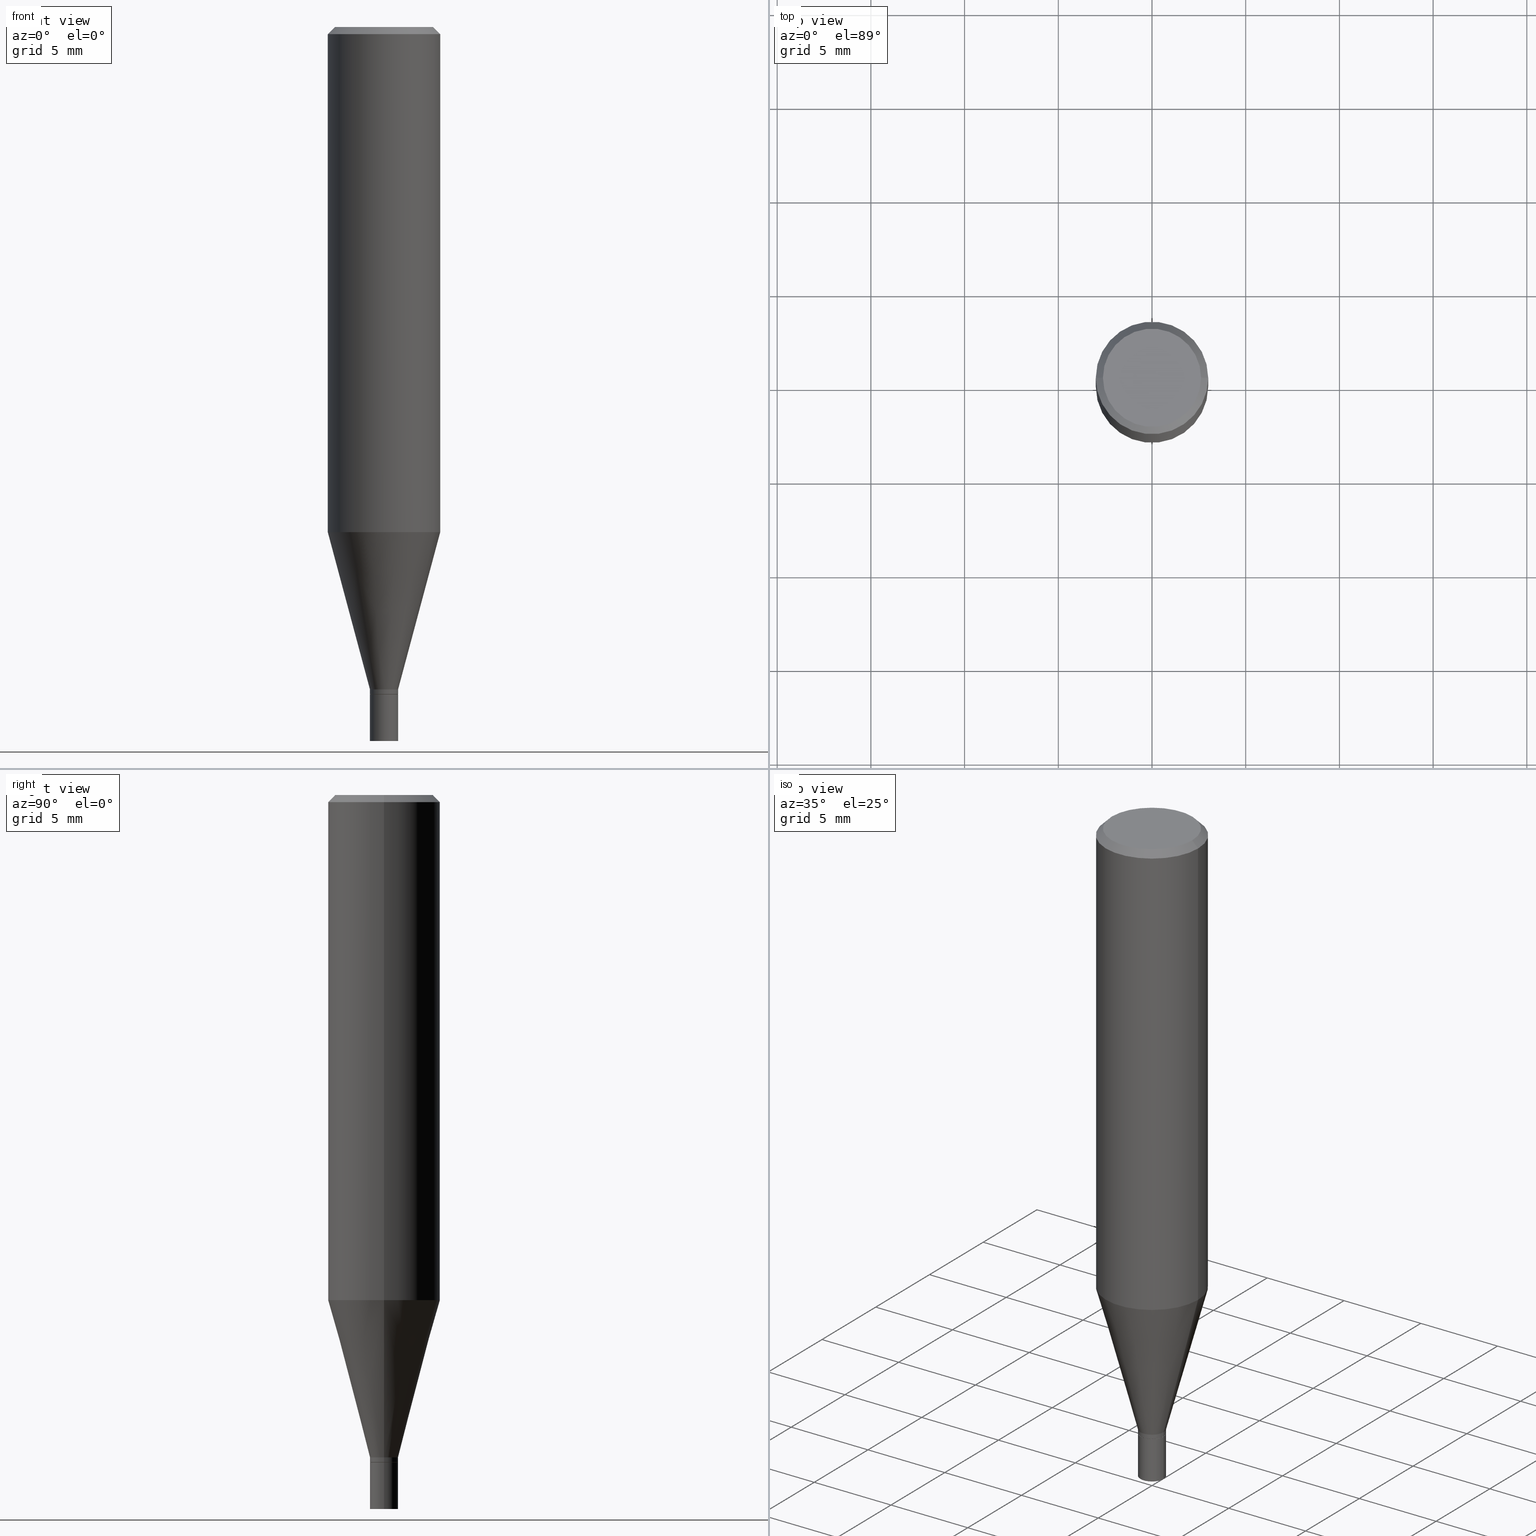
[diagram: canonical four-view strip — front | top / right | iso, engineering-drawing reading convention]
A machine part, canonical four-view strip (front | top / right | iso — engineering-drawing reading convention). The complete STEP part file that produces these views, byte-faithful:
ISO-10303-21;
HEADER;
FILE_DESCRIPTION (( 'STEP AP203' ),
    '1' );
FILE_NAME ('05310.STEP',
    '2024-03-14T18:07:20',
    ( '' ),
    ( '' ),
    'SwSTEP 2.0',
    'SolidWorks 2023',
    '' );
FILE_SCHEMA (( 'CONFIG_CONTROL_DESIGN' ));
ENDSEC;

DATA;
#1 = CIRCLE ( 'NONE', #4, 0.1180999999999999966 ) ;
#2 =( GEOMETRIC_REPRESENTATION_CONTEXT ( 3 ) GLOBAL_UNCERTAINTY_ASSIGNED_CONTEXT ( ( #76 ) ) GLOBAL_UNIT_ASSIGNED_CONTEXT ( ( #396, #173, #465 ) ) REPRESENTATION_CONTEXT ( 'NONE', 'WORKASPACE' ) );
#3 = PERSON_AND_ORGANIZATION ( #65, #17 ) ;
#4 = AXIS2_PLACEMENT_3D ( 'NONE', #219, #120, #305 ) ;
#5 = DATE_TIME_ROLE ( 'creation_date' ) ;
#6 = DIRECTION ( 'NONE',  ( -2.445468806185136597E-29, 3.491481338843145583E-15, 1.000000000000000000 ) ) ;
#7 = APPROVAL_STATUS ( 'not_yet_approved' ) ;
#8 = AXIS2_PLACEMENT_3D ( 'NONE', #354, #274, #164 ) ;
#9 = ORIENTED_EDGE ( 'NONE', *, *, #404, .T. ) ;
#10 = CARTESIAN_POINT ( 'NONE',  ( -0.1180999999999999966, -1.039487525583773150E-15, -0.01499999999999999944 ) ) ;
#11 = CARTESIAN_POINT ( 'NONE',  ( 0.02954999999999937191, -5.065091978259746092E-15, -1.391599999999999948 ) ) ;
#12 = DATE_AND_TIME ( #149, #211 ) ;
#13 = DIRECTION ( 'NONE',  ( 1.000000000000000000, -6.982962677686279332E-15, 0.000000000000000000 ) ) ;
#14 = CARTESIAN_POINT ( 'NONE',  ( 0.1031000000000000111, -7.849571885948555664E-16, -2.607001550058841606E-16 ) ) ;
#15 = CYLINDRICAL_SURFACE ( 'NONE', #350, 0.02954999999999964599 ) ;
#16 = AXIS2_PLACEMENT_3D ( 'NONE', #21, #349, #86 ) ;
#17 = ORGANIZATION ( 'UNSPECIFIED', 'UNSPECIFIED', '' ) ;
#18 = ADVANCED_FACE ( 'NONE', ( #462 ), #410, .T. ) ;
#19 = DIRECTION ( 'NONE',  ( -2.445468806185136597E-29, 3.491481338843145583E-15, 1.000000000000000000 ) ) ;
#20 = EDGE_CURVE ( 'NONE', #269, #111, #263, .T. ) ;
#21 = CARTESIAN_POINT ( 'NONE',  ( 3.426346344345994950E-29, -4.891914503853132149E-15, -1.401100000000000234 ) ) ;
#22 = ORIENTED_EDGE ( 'NONE', *, *, #301, .F. ) ;
#23 = FACE_OUTER_BOUND ( 'NONE', #366, .T. ) ;
#24 = VERTEX_POINT ( 'NONE', #11 ) ;
#25 = DIRECTION ( 'NONE',  ( -2.438088387897960049E-29, 3.491481338843145188E-15, 1.000000000000000000 ) ) ;
#26 = ORIENTED_EDGE ( 'NONE', *, *, #285, .F. ) ;
#27 = PLANE ( 'NONE',  #271 ) ;
#28 = ORIENTED_EDGE ( 'NONE', *, *, #64, .T. ) ;
#29 = ORIENTED_EDGE ( 'NONE', *, *, #304, .F. ) ;
#30 = LINE ( 'NONE', #172, #333 ) ;
#31 = LOCAL_TIME ( 14, 7, 20.00000000000000000, #437 ) ;
#32 = CALENDAR_DATE ( 2024, 14, 3 ) ;
#33 = CARTESIAN_POINT ( 'NONE',  ( 0.02954999999999964599, -2.063465471256267015E-16, 1.440910237247681904E-30 ) ) ;
#34 = PERSON_AND_ORGANIZATION ( #65, #17 ) ;
#35 = ORIENTED_EDGE ( 'NONE', *, *, #97, .F. ) ;
#36 = DIRECTION ( 'NONE',  ( 1.000000000000000000, -6.982962677686266711E-15, 4.876176775795936353E-29 ) ) ;
#37 = DIRECTION ( 'NONE',  ( 1.000000000000000000, -6.982962677686265133E-15, 0.000000000000000000 ) ) ;
#38 = APPLICATION_CONTEXT ( 'configuration controlled 3d designs of mechanical parts and assemblies' ) ;
#39 = DATE_TIME_ROLE ( 'classification_date' ) ;
#40 = CONICAL_SURFACE ( 'NONE', #61, 0.02904999999999999943, 0.7853981633974739252 ) ;
#41 = ADVANCED_FACE ( 'NONE', ( #119 ), #400, .T. ) ;
#42 = CONICAL_SURFACE ( 'NONE', #310, 0.02954999999999937191, 0.2617993877991500740 ) ;
#43 = CARTESIAN_POINT ( 'NONE',  ( 3.403114390687236206E-29, -4.858745431134121215E-15, -1.391599999999999948 ) ) ;
#44 = VERTEX_POINT ( 'NONE', #376 ) ;
#45 = CARTESIAN_POINT ( 'NONE',  ( 0.000000000000000000, 0.000000000000000000, 0.000000000000000000 ) ) ;
#46 = DIRECTION ( 'NONE',  ( 1.000000000000000000, -6.982962677686266711E-15, 4.876176775795936353E-29 ) ) ;
#47 = DIRECTION ( 'NONE',  ( -2.445468806185136597E-29, 3.491481338843145583E-15, 1.000000000000000000 ) ) ;
#48 = EDGE_LOOP ( 'NONE', ( #273, #28, #181, #424 ) ) ;
#49 = CARTESIAN_POINT ( 'NONE',  ( 3.403114390687236206E-29, -4.858745431134121215E-15, -1.391599999999999948 ) ) ;
#50 = ORIENTED_EDGE ( 'NONE', *, *, #212, .F. ) ;
#51 = LINE ( 'NONE', #55, #104 ) ;
#52 = AXIS2_PLACEMENT_3D ( 'NONE', #138, #323, #286 ) ;
#53 = DIRECTION ( 'NONE',  ( 1.000000000000000000, -6.982962677686277755E-15, 0.000000000000000000 ) ) ;
#54 = ORIENTED_EDGE ( 'NONE', *, *, #340, .F. ) ;
#55 = CARTESIAN_POINT ( 'NONE',  ( 0.02954999999999937191, -5.065091978259746092E-15, -1.391599999999999948 ) ) ;
#56 = CYLINDRICAL_SURFACE ( 'NONE', #281, 0.1180999999999999966 ) ;
#57 = VERTEX_POINT ( 'NONE', #227 ) ;
#58 = DIRECTION ( 'NONE',  ( 1.000000000000000000, -6.982962677686277755E-15, 0.000000000000000000 ) ) ;
#59 = DIRECTION ( 'NONE',  ( 1.000000000000000000, -6.982962677686265922E-15, 4.883331232093008327E-29 ) ) ;
#60 = ORIENTED_EDGE ( 'NONE', *, *, #124, .F. ) ;
#61 = AXIS2_PLACEMENT_3D ( 'NONE', #102, #428, #58 ) ;
#62 = APPROVAL_STATUS ( 'not_yet_approved' ) ;
#63 = APPLICATION_CONTEXT ( 'configuration controlled 3d designs of mechanical parts and assemblies' ) ;
#64 = EDGE_CURVE ( 'NONE', #269, #361, #264, .T. ) ;
#65 = PERSON ( 'UNSPECIFIED', 'UNSPECIFIED', 'UNSPECIFIED', ('UNSPECIFIED'), ('UNSPECIFIED'), ('UNSPECIFIED') ) ;
#66 = AXIS2_PLACEMENT_3D ( 'NONE', #236, #25, #160 ) ;
#67 = VECTOR ( 'NONE', #100, 39.37007874015748143 ) ;
#68 = SECURITY_CLASSIFICATION_LEVEL ( 'unclassified' ) ;
#69 = DATE_AND_TIME ( #215, #31 ) ;
#70 = EDGE_LOOP ( 'NONE', ( #278, #386, #35, #95 ) ) ;
#71 = CARTESIAN_POINT ( 'NONE',  ( 3.403114390687236206E-29, -4.858745431134121215E-15, -1.391599999999999948 ) ) ;
#72 = PERSON_AND_ORGANIZATION_ROLE ( 'creator' ) ;
#73 = ORIENTED_EDGE ( 'NONE', *, *, #319, .T. ) ;
#74 = DIRECTION ( 'NONE',  ( -2.445468806185136877E-29, 3.491481338843145188E-15, 1.000000000000000000 ) ) ;
#75 = CARTESIAN_POINT ( 'NONE',  ( 6.375340968345323889E-45, -9.102297262365781992E-31, -2.607001550058893868E-16 ) ) ;
#76 = UNCERTAINTY_MEASURE_WITH_UNIT (LENGTH_MEASURE( 1.000000000000000082E-05 ), #396, 'distance_accuracy_value', 'NONE');
#77 = AXIS2_PLACEMENT_3D ( 'NONE', #300, #414, #113 ) ;
#78 = CC_DESIGN_DATE_AND_TIME_ASSIGNMENT ( #69, #5, ( #292 ) ) ;
#79 = AXIS2_PLACEMENT_3D ( 'NONE', #195, #144, #37 ) ;
#80 = FACE_OUTER_BOUND ( 'NONE', #136, .T. ) ;
#81 = DIRECTION ( 'NONE',  ( -0.2588190451025213501, 5.211531920934551042E-15, 0.9659258262890682012 ) ) ;
#82 = CYLINDRICAL_SURFACE ( 'NONE', #140, 0.02954999999999999988 ) ;
#83 = PRODUCT_DEFINITION_FORMATION_WITH_SPECIFIED_SOURCE ( 'ANY', '', #270, .NOT_KNOWN. ) ;
#84 = PLANE ( 'NONE',  #159 ) ;
#85 = VERTEX_POINT ( 'NONE', #14 ) ;
#86 = DIRECTION ( 'NONE',  ( 1.000000000000000000, -6.982962677686280121E-15, 0.000000000000000000 ) ) ;
#87 = ORIENTED_EDGE ( 'NONE', *, *, #381, .F. ) ;
#88 = EDGE_CURVE ( 'NONE', #200, #361, #223, .T. ) ;
#89 = MANIFOLD_SOLID_BREP ( 'Body-Move/Copy2[1]', #288 ) ;
#90 = LINE ( 'NONE', #457, #387 ) ;
#91 = ORIENTED_EDGE ( 'NONE', *, *, #174, .F. ) ;
#92 = APPLICATION_PROTOCOL_DEFINITION ( 'international standard', 'config_control_design', 1994, #63 ) ;
#93 = AXIS2_PLACEMENT_3D ( 'NONE', #199, #448, #53 ) ;
#94 = FACE_OUTER_BOUND ( 'NONE', #70, .T. ) ;
#95 = ORIENTED_EDGE ( 'NONE', *, *, #433, .F. ) ;
#96 = CARTESIAN_POINT ( 'NONE',  ( 0.000000000000000000, 0.000000000000000000, 0.000000000000000000 ) ) ;
#97 = EDGE_CURVE ( 'NONE', #44, #57, #342, .T. ) ;
#98 = CARTESIAN_POINT ( 'NONE',  ( 3.668203209277705088E-31, -5.237222008264718399E-17, -0.01499999999999999944 ) ) ;
#99 = ORIENTED_EDGE ( 'NONE', *, *, #262, .F. ) ;
#100 = DIRECTION ( 'NONE',  ( -0.7071067811865535679, 2.468850131082320169E-15, -0.7071067811865414665 ) ) ;
#101 = CC_DESIGN_PERSON_AND_ORGANIZATION_ASSIGNMENT ( #129, #276, ( #270 ) ) ;
#102 = CARTESIAN_POINT ( 'NONE',  ( 3.427569078749087752E-29, -4.893660244522553653E-15, -1.401600000000000179 ) ) ;
#103 = CIRCLE ( 'NONE', #116, 0.1180999999999999966 ) ;
#104 = VECTOR ( 'NONE', #204, 39.37007874015747433 ) ;
#105 = DATE_AND_TIME ( #368, #256 ) ;
#106 = PERSON_AND_ORGANIZATION ( #65, #17 ) ;
#107 = AXIS2_PLACEMENT_3D ( 'NONE', #408, #222, #178 ) ;
#108 = DATE_AND_TIME ( #403, #461 ) ;
#109 = EDGE_CURVE ( 'NONE', #57, #332, #191, .T. ) ;
#110 = DATE_AND_TIME ( #32, #371 ) ;
#111 = VERTEX_POINT ( 'NONE', #153 ) ;
#112 = CARTESIAN_POINT ( 'NONE',  ( -0.02954999999999937191, -3.757266927367296018E-15, -1.391599999999999948 ) ) ;
#113 = DIRECTION ( 'NONE',  ( 1.000000000000000000, -6.982962677686261977E-15, 0.000000000000000000 ) ) ;
#114 = EDGE_LOOP ( 'NONE', ( #318, #339, #91, #203 ) ) ;
#115 = CARTESIAN_POINT ( 'NONE',  ( -0.02954999999999964599, 2.099653784171070896E-16, -1.453545319170307384E-30 ) ) ;
#116 = AXIS2_PLACEMENT_3D ( 'NONE', #294, #439, #334 ) ;
#117 = ADVANCED_FACE ( 'NONE', ( #80 ), #15, .T. ) ;
#118 = VECTOR ( 'NONE', #249, 39.37007874015748143 ) ;
#119 = FACE_OUTER_BOUND ( 'NONE', #384, .T. ) ;
#120 = DIRECTION ( 'NONE',  ( -2.445468806185136597E-29, 3.491481338843145583E-15, 1.000000000000000000 ) ) ;
#121 = CARTESIAN_POINT ( 'NONE',  ( -0.02954999999999999988, -4.855475747976527346E-15, -1.500000000000000222 ) ) ;
#122 = AXIS2_PLACEMENT_3D ( 'NONE', #443, #341, #445 ) ;
#123 = CIRCLE ( 'NONE', #446, 0.02954999999999937191 ) ;
#124 = EDGE_CURVE ( 'NONE', #332, #441, #415, .T. ) ;
#125 = DIRECTION ( 'NONE',  ( -2.445468806185136597E-29, 3.491481338843145583E-15, 1.000000000000000000 ) ) ;
#126 = ORIENTED_EDGE ( 'NONE', *, *, #109, .F. ) ;
#127 = DIRECTION ( 'NONE',  ( 1.000000000000000000, -6.982962677686277755E-15, 0.000000000000000000 ) ) ;
#128 = VERTEX_POINT ( 'NONE', #416 ) ;
#129 = PERSON_AND_ORGANIZATION ( #65, #17 ) ;
#130 = DIRECTION ( 'NONE',  ( -2.445468806185136877E-29, 3.491481338843145188E-15, 1.000000000000000000 ) ) ;
#131 = EDGE_LOOP ( 'NONE', ( #283, #380, #313, #411 ) ) ;
#132 = LINE ( 'NONE', #432, #67 ) ;
#133 = VECTOR ( 'NONE', #81, 39.37007874015747433 ) ;
#134 = AXIS2_PLACEMENT_3D ( 'NONE', #98, #314, #272 ) ;
#135 = LINE ( 'NONE', #306, #225 ) ;
#136 = EDGE_LOOP ( 'NONE', ( #419, #315, #87, #54 ) ) ;
#137 = CYLINDRICAL_SURFACE ( 'NONE', #352, 0.02954999999999999988 ) ;
#138 = CARTESIAN_POINT ( 'NONE',  ( 0.000000000000000000, 0.000000000000000000, 0.000000000000000000 ) ) ;
#139 = ADVANCED_BREP_SHAPE_REPRESENTATION ( '05310', ( #89, #248, #52 ), #2 ) ;
#140 = AXIS2_PLACEMENT_3D ( 'NONE', #343, #230, #378 ) ;
#141 = APPROVAL_PERSON_ORGANIZATION ( #329, #322, #258 ) ;
#142 = APPROVAL_ROLE ( '' ) ;
#143 = EDGE_CURVE ( 'NONE', #441, #234, #1, .T. ) ;
#144 = DIRECTION ( 'NONE',  ( -2.445468806185136597E-29, 3.491481338843145583E-15, 1.000000000000000000 ) ) ;
#145 = APPROVAL_DATE_TIME ( #110, #395 ) ;
#146 = CARTESIAN_POINT ( 'NONE',  ( -0.02954999999999999988, -4.855475747976527346E-15, -1.401600000000000179 ) ) ;
#147 = APPROVAL ( #295, 'UNSPECIFIED' ) ;
#148 = DIRECTION ( 'NONE',  ( -2.445468806185136597E-29, 3.491481338843145583E-15, 1.000000000000000000 ) ) ;
#149 = CALENDAR_DATE ( 2024, 14, 3 ) ;
#150 = DIRECTION ( 'NONE',  ( -1.000000000000000000, 6.982962677686266711E-15, 0.000000000000000000 ) ) ;
#151 = EDGE_LOOP ( 'NONE', ( #299, #370, #156, #308 ) ) ;
#152 = DIRECTION ( 'NONE',  ( -2.445468806185136597E-29, 3.491481338843145583E-15, 1.000000000000000000 ) ) ;
#153 = CARTESIAN_POINT ( 'NONE',  ( 0.02954999999999999988, -5.443568555390347787E-15, -1.500000000000000222 ) ) ;
#154 = DIRECTION ( 'NONE',  ( -1.000000000000000000, 6.982962677686265922E-15, -4.876176775795935793E-29 ) ) ;
#155 = DIRECTION ( 'NONE',  ( -1.000000000000000000, 6.982962677686265922E-15, -4.876176775795935793E-29 ) ) ;
#156 = ORIENTED_EDGE ( 'NONE', *, *, #466, .T. ) ;
#157 = AXIS2_PLACEMENT_3D ( 'NONE', #418, #19, #389 ) ;
#158 = CC_DESIGN_APPROVAL ( #395, ( #292 ) ) ;
#159 = AXIS2_PLACEMENT_3D ( 'NONE', #232, #312, #154 ) ;
#160 = DIRECTION ( 'NONE',  ( 1.000000000000000000, -6.982962677686265922E-15, 4.876176775795935793E-29 ) ) ;
#161 = EDGE_CURVE ( 'NONE', #336, #237, #187, .T. ) ;
#162 = ORIENTED_EDGE ( 'NONE', *, *, #404, .F. ) ;
#163 = DIRECTION ( 'NONE',  ( -2.438088387897960049E-29, 3.491481338843145188E-15, 1.000000000000000000 ) ) ;
#164 = DIRECTION ( 'NONE',  ( 1.000000000000000000, -6.982962677686265922E-15, 4.883331232093008327E-29 ) ) ;
#165 = EDGE_LOOP ( 'NONE', ( #126, #320, #427, #221 ) ) ;
#166 = ADVANCED_FACE ( 'NONE', ( #192 ), #82, .T. ) ;
#167 = DIRECTION ( 'NONE',  ( 1.000000000000000000, -6.982962677686266711E-15, 4.876176775795936353E-29 ) ) ;
#168 = LINE ( 'NONE', #345, #373 ) ;
#169 = ORIENTED_EDGE ( 'NONE', *, *, #177, .F. ) ;
#170 = DIRECTION ( 'NONE',  ( -2.445468806185136597E-29, 3.491481338843145583E-15, 1.000000000000000000 ) ) ;
#171 = EDGE_LOOP ( 'NONE', ( #455, #247, #390, #296 ) ) ;
#172 = CARTESIAN_POINT ( 'NONE',  ( 0.02904999999999999943, -5.096515310309340256E-15, -1.401600000000000179 ) ) ;
#173 =( NAMED_UNIT ( * ) PLANE_ANGLE_UNIT ( ) SI_UNIT ( $, .RADIAN. ) );
#174 = EDGE_CURVE ( 'NONE', #234, #441, #325, .T. ) ;
#175 = CIRCLE ( 'NONE', #224, 0.02954999999999999988 ) ;
#176 = PERSON_AND_ORGANIZATION_ROLE ( 'classification_officer' ) ;
#177 = EDGE_CURVE ( 'NONE', #237, #336, #103, .T. ) ;
#178 = DIRECTION ( 'NONE',  ( 1.000000000000000000, -6.982962677686279332E-15, 0.000000000000000000 ) ) ;
#179 = COORDINATED_UNIVERSAL_TIME_OFFSET ( 5, 0, .BEHIND. ) ;
#180 = CC_DESIGN_PERSON_AND_ORGANIZATION_ASSIGNMENT ( #327, #436, ( #83 ) ) ;
#181 = ORIENTED_EDGE ( 'NONE', *, *, #88, .F. ) ;
#182 = LINE ( 'NONE', #33, #231 ) ;
#183 = CIRCLE ( 'NONE', #157, 0.02954999999999999988 ) ;
#184 = CARTESIAN_POINT ( 'NONE',  ( -0.02954999999999999988, 2.099653784171096041E-16, -1.453545319170324550E-30 ) ) ;
#185 = CONICAL_SURFACE ( 'NONE', #134, 0.1180999999999999966, 0.7853981633974568277 ) ;
#186 = COORDINATED_UNIVERSAL_TIME_OFFSET ( 5, 0, .BEHIND. ) ;
#187 = CIRCLE ( 'NONE', #290, 0.1180999999999999966 ) ;
#188 = DIRECTION ( 'NONE',  ( -2.445468806185136597E-29, 3.491481338843145583E-15, 1.000000000000000000 ) ) ;
#189 = DIRECTION ( 'NONE',  ( 1.000000000000000000, -6.982962677686279332E-15, 0.000000000000000000 ) ) ;
#190 = ORIENTED_EDGE ( 'NONE', *, *, #364, .T. ) ;
#191 = LINE ( 'NONE', #115, #369 ) ;
#192 = FACE_OUTER_BOUND ( 'NONE', #171, .T. ) ;
#193 = APPROVAL_PERSON_ORGANIZATION ( #399, #395, #440 ) ;
#194 = CIRCLE ( 'NONE', #8, 0.1031000000000000111 ) ;
#195 = CARTESIAN_POINT ( 'NONE',  ( 2.594952735774397508E-29, -3.704904772950256010E-15, -1.061126900989774580 ) ) ;
#196 = PLANE ( 'NONE',  #66 ) ;
#197 = ORIENTED_EDGE ( 'NONE', *, *, #161, .T. ) ;
#198 = CC_DESIGN_PERSON_AND_ORGANIZATION_ASSIGNMENT ( #106, #365, ( #83 ) ) ;
#199 = CARTESIAN_POINT ( 'NONE',  ( 3.427569078749087752E-29, -4.893660244522553653E-15, -1.401600000000000179 ) ) ;
#200 = VERTEX_POINT ( 'NONE', #298 ) ;
#201 = CC_DESIGN_APPROVAL ( #147, ( #412 ) ) ;
#202 = FACE_OUTER_BOUND ( 'NONE', #347, .T. ) ;
#203 = ORIENTED_EDGE ( 'NONE', *, *, #429, .F. ) ;
#204 = DIRECTION ( 'NONE',  ( 0.2588190451025213501, 1.565188264969621968E-15, 0.9659258262890682012 ) ) ;
#205 = DIRECTION ( 'NONE',  ( 1.000000000000000000, -6.982962677686266711E-15, 4.876176775795936353E-29 ) ) ;
#206 = ORIENTED_EDGE ( 'NONE', *, *, #143, .F. ) ;
#207 = CC_DESIGN_PERSON_AND_ORGANIZATION_ASSIGNMENT ( #401, #72, ( #292 ) ) ;
#208 = CARTESIAN_POINT ( 'NONE',  ( 0.1180999999999999966, -8.246878922347480654E-16, 5.758764772215000440E-30 ) ) ;
#209 = VERTEX_POINT ( 'NONE', #409 ) ;
#210 = APPLICATION_PROTOCOL_DEFINITION ( 'international standard', 'config_control_design', 1994, #38 ) ;
#211 = LOCAL_TIME ( 14, 7, 20.00000000000000000, #186 ) ;
#212 = EDGE_CURVE ( 'NONE', #85, #209, #331, .T. ) ;
#213 = APPROVAL_DATE_TIME ( #12, #147 ) ;
#214 = ADVANCED_FACE ( 'NONE', ( #383 ), #42, .T. ) ;
#215 = CALENDAR_DATE ( 2024, 14, 3 ) ;
#216 = ADVANCED_FACE ( 'NONE', ( #94 ), #241, .T. ) ;
#217 = ADVANCED_FACE ( 'NONE', ( #420 ), #266, .T. ) ;
#218 = ORIENTED_EDGE ( 'NONE', *, *, #304, .T. ) ;
#219 = CARTESIAN_POINT ( 'NONE',  ( 2.594952735774397508E-29, -3.704904772950256010E-15, -1.061126900989774580 ) ) ;
#220 = COORDINATED_UNIVERSAL_TIME_OFFSET ( 5, 0, .BEHIND. ) ;
#221 = ORIENTED_EDGE ( 'NONE', *, *, #359, .F. ) ;
#222 = DIRECTION ( 'NONE',  ( -2.445468806185136597E-29, 3.491481338843145583E-15, 1.000000000000000000 ) ) ;
#223 = CIRCLE ( 'NONE', #77, 0.02954999999999999988 ) ;
#224 = AXIS2_PLACEMENT_3D ( 'NONE', #328, #405, #337 ) ;
#225 = VECTOR ( 'NONE', #282, 39.37007874015748143 ) ;
#226 = ORIENTED_EDGE ( 'NONE', *, *, #177, .T. ) ;
#227 = CARTESIAN_POINT ( 'NONE',  ( -0.02954999999999992355, -4.681949125436022792E-15, -1.401100000000000234 ) ) ;
#228 = CARTESIAN_POINT ( 'NONE',  ( 3.668203209277705088E-31, -5.237222008264718399E-17, -0.01499999999999999944 ) ) ;
#229 = EDGE_CURVE ( 'NONE', #351, #57, #168, .T. ) ;
#230 = DIRECTION ( 'NONE',  ( -2.445468806185136597E-29, 3.491481338843145583E-15, 1.000000000000000000 ) ) ;
#231 = VECTOR ( 'NONE', #260, 39.37007874015748143 ) ;
#232 = CARTESIAN_POINT ( 'NONE',  ( 7.199434520694541042E-16, 0.1031000000000000111, -4.903218035376729781E-16 ) ) ;
#233 = EDGE_CURVE ( 'NONE', #57, #44, #435, .T. ) ;
#234 = VERTEX_POINT ( 'NONE', #393 ) ;
#235 = EDGE_CURVE ( 'NONE', #111, #269, #183, .T. ) ;
#236 = CARTESIAN_POINT ( 'NONE',  ( 3.427569078749087752E-29, -4.893660244522553653E-15, -1.401600000000000179 ) ) ;
#237 = VERTEX_POINT ( 'NONE', #385 ) ;
#238 = DIRECTION ( 'NONE',  ( 0.7071067811865656694, -2.468850131082446387E-15, 0.7071067811865294761 ) ) ;
#239 = DIRECTION ( 'NONE',  ( 2.438088387897960049E-29, -3.491481338843145188E-15, -1.000000000000000000 ) ) ;
#240 = ORIENTED_EDGE ( 'NONE', *, *, #359, .T. ) ;
#241 = CONICAL_SURFACE ( 'NONE', #93, 0.02904999999999999943, 0.7853981633974739252 ) ;
#242 = FACE_OUTER_BOUND ( 'NONE', #422, .T. ) ;
#243 = DIRECTION ( 'NONE',  ( 1.000000000000000000, -6.982962677686279332E-15, 0.000000000000000000 ) ) ;
#244 = EDGE_LOOP ( 'NONE', ( #99, #29, #9, #197 ) ) ;
#245 = CARTESIAN_POINT ( 'NONE',  ( -0.1180999999999999689, -2.865753802017576629E-15, -1.061126900989774580 ) ) ;
#246 = CARTESIAN_POINT ( 'NONE',  ( 0.000000000000000000, 0.000000000000000000, 0.000000000000000000 ) ) ;
#247 = ORIENTED_EDGE ( 'NONE', *, *, #20, .T. ) ;
#248 = MANIFOLD_SOLID_BREP ( 'Body-Move/Copy2[2]', #453 ) ;
#249 = DIRECTION ( 'NONE',  ( -2.445468806185136877E-29, 3.491481338843145188E-15, 1.000000000000000000 ) ) ;
#250 = ADVANCED_FACE ( 'NONE', ( #23 ), #196, .F. ) ;
#251 = CARTESIAN_POINT ( 'NONE',  ( 0.000000000000000000, 0.000000000000000000, 0.000000000000000000 ) ) ;
#252 = AXIS2_PLACEMENT_3D ( 'NONE', #346, #426, #205 ) ;
#253 = VECTOR ( 'NONE', #74, 39.37007874015748143 ) ;
#254 = AXIS2_PLACEMENT_3D ( 'NONE', #75, #47, #59 ) ;
#255 = ADVANCED_FACE ( 'NONE', ( #202 ), #84, .F. ) ;
#256 = LOCAL_TIME ( 14, 7, 20.00000000000000000, #220 ) ;
#257 = CARTESIAN_POINT ( 'NONE',  ( 0.02954999999999999988, -2.063465471256291914E-16, 1.440910237247699070E-30 ) ) ;
#258 = APPROVAL_ROLE ( '' ) ;
#259 = ORIENTED_EDGE ( 'NONE', *, *, #88, .T. ) ;
#260 = DIRECTION ( 'NONE',  ( -2.445468806185136877E-29, 3.491481338843145188E-15, 1.000000000000000000 ) ) ;
#261 = CARTESIAN_POINT ( 'NONE',  ( -0.02954999999999937191, -4.648780052717015801E-15, -1.391599999999999948 ) ) ;
#262 = EDGE_CURVE ( 'NONE', #85, #237, #135, .T. ) ;
#263 = CIRCLE ( 'NONE', #302, 0.02954999999999999988 ) ;
#264 = LINE ( 'NONE', #184, #268 ) ;
#265 = DIRECTION ( 'NONE',  ( -2.445468806185136877E-29, 3.491481338843145188E-15, 1.000000000000000000 ) ) ;
#266 = CYLINDRICAL_SURFACE ( 'NONE', #252, 0.02954999999999964599 ) ;
#267 = CC_DESIGN_DATE_AND_TIME_ASSIGNMENT ( #105, #39, ( #412 ) ) ;
#268 = VECTOR ( 'NONE', #338, 39.37007874015748143 ) ;
#269 = VERTEX_POINT ( 'NONE', #121 ) ;
#270 = PRODUCT ( '05310', '05310', '', ( #316 ) ) ;
#271 = AXIS2_PLACEMENT_3D ( 'NONE', #357, #239, #155 ) ;
#272 = DIRECTION ( 'NONE',  ( -1.000000000000000000, 6.982962677686266711E-15, 0.000000000000000000 ) ) ;
#273 = ORIENTED_EDGE ( 'NONE', *, *, #235, .T. ) ;
#274 = DIRECTION ( 'NONE',  ( -2.445468806185136597E-29, 3.491481338843145583E-15, 1.000000000000000000 ) ) ;
#275 = EDGE_LOOP ( 'NONE', ( #259, #190 ) ) ;
#276 = PERSON_AND_ORGANIZATION_ROLE ( 'design_owner' ) ;
#277 = FACE_OUTER_BOUND ( 'NONE', #431, .T. ) ;
#278 = ORIENTED_EDGE ( 'NONE', *, *, #301, .T. ) ;
#279 = AXIS2_PLACEMENT_3D ( 'NONE', #43, #6, #189 ) ;
#280 = CYLINDRICAL_SURFACE ( 'NONE', #417, 0.1180999999999999966 ) ;
#281 = AXIS2_PLACEMENT_3D ( 'NONE', #246, #363, #36 ) ;
#282 = DIRECTION ( 'NONE',  ( 0.7071067811865535679, -7.319954787623276556E-15, -0.7071067811865414665 ) ) ;
#283 = ORIENTED_EDGE ( 'NONE', *, *, #229, .F. ) ;
#284 = FACE_OUTER_BOUND ( 'NONE', #131, .T. ) ;
#285 = EDGE_CURVE ( 'NONE', #351, #128, #353, .T. ) ;
#286 = DIRECTION ( 'NONE',  ( 1.000000000000000000, 0.000000000000000000, 0.000000000000000000 ) ) ;
#287 = CARTESIAN_POINT ( 'NONE',  ( 3.668203209277705088E-31, -5.237222008264718399E-17, -0.01499999999999999944 ) ) ;
#288 = CLOSED_SHELL ( 'NONE', ( #421, #406, #166, #297 ) ) ;
#289 = AXIS2_PLACEMENT_3D ( 'NONE', #450, #125, #127 ) ;
#290 = AXIS2_PLACEMENT_3D ( 'NONE', #228, #148, #377 ) ;
#291 = SHAPE_DEFINITION_REPRESENTATION ( #382, #139 ) ;
#292 = PRODUCT_DEFINITION ( 'UNKNOWN', '', #83, #335 ) ;
#293 = APPROVAL_PERSON_ORGANIZATION ( #3, #147, #142 ) ;
#294 = CARTESIAN_POINT ( 'NONE',  ( 3.668203209277705088E-31, -5.237222008264718399E-17, -0.01499999999999999944 ) ) ;
#295 = APPROVAL_STATUS ( 'not_yet_approved' ) ;
#296 = ORIENTED_EDGE ( 'NONE', *, *, #364, .F. ) ;
#297 = ADVANCED_FACE ( 'NONE', ( #430 ), #27, .F. ) ;
#298 = CARTESIAN_POINT ( 'NONE',  ( 0.02954999999999999988, -5.100006791648182474E-15, -1.401600000000000179 ) ) ;
#299 = ORIENTED_EDGE ( 'NONE', *, *, #319, .F. ) ;
#300 = CARTESIAN_POINT ( 'NONE',  ( 3.427569078749087752E-29, -4.893660244522553653E-15, -1.401600000000000179 ) ) ;
#301 = EDGE_CURVE ( 'NONE', #128, #351, #326, .T. ) ;
#302 = AXIS2_PLACEMENT_3D ( 'NONE', #374, #367, #303 ) ;
#303 = DIRECTION ( 'NONE',  ( 1.000000000000000000, -6.982962677686261977E-15, 0.000000000000000000 ) ) ;
#304 = EDGE_CURVE ( 'NONE', #209, #85, #194, .T. ) ;
#305 = DIRECTION ( 'NONE',  ( 1.000000000000000000, -6.982962677686265133E-15, 0.000000000000000000 ) ) ;
#306 = CARTESIAN_POINT ( 'NONE',  ( 0.1180999999999999966, -8.625970336194650129E-16, -0.01499999999999999944 ) ) ;
#307 = CARTESIAN_POINT ( 'NONE',  ( 3.427569078749087752E-29, -4.893660244522553653E-15, -1.401600000000000179 ) ) ;
#308 = ORIENTED_EDGE ( 'NONE', *, *, #161, .F. ) ;
#309 = CIRCLE ( 'NONE', #107, 0.02954999999999937191 ) ;
#310 = AXIS2_PLACEMENT_3D ( 'NONE', #49, #460, #243 ) ;
#311 = ADVANCED_FACE ( 'NONE', ( #423 ), #185, .T. ) ;
#312 = DIRECTION ( 'NONE',  ( 2.438088387897960049E-29, -3.491481338843145188E-15, -1.000000000000000000 ) ) ;
#313 = ORIENTED_EDGE ( 'NONE', *, *, #433, .T. ) ;
#314 = DIRECTION ( 'NONE',  ( 2.445468806185136597E-29, -3.491481338843145583E-15, -1.000000000000000000 ) ) ;
#315 = ORIENTED_EDGE ( 'NONE', *, *, #109, .T. ) ;
#316 = MECHANICAL_CONTEXT ( 'NONE', #38, 'mechanical' ) ;
#317 = DIRECTION ( 'NONE',  ( -0.7071067811865656694, 7.493145998870420424E-15, 0.7071067811865294761 ) ) ;
#318 = ORIENTED_EDGE ( 'NONE', *, *, #381, .T. ) ;
#319 = EDGE_CURVE ( 'NONE', #441, #336, #90, .T. ) ;
#320 = ORIENTED_EDGE ( 'NONE', *, *, #233, .T. ) ;
#321 = DIRECTION ( 'NONE',  ( -2.445468806185136597E-29, 3.491481338843145583E-15, 1.000000000000000000 ) ) ;
#322 = APPROVAL ( #7, 'UNSPECIFIED' ) ;
#323 = DIRECTION ( 'NONE',  ( 0.000000000000000000, 0.000000000000000000, 1.000000000000000000 ) ) ;
#324 = APPROVAL_DATE_TIME ( #108, #322 ) ;
#325 = CIRCLE ( 'NONE', #79, 0.1180999999999999966 ) ;
#326 = CIRCLE ( 'NONE', #289, 0.02904999999999999943 ) ;
#327 = PERSON_AND_ORGANIZATION ( #65, #17 ) ;
#328 = CARTESIAN_POINT ( 'NONE',  ( 3.427569078749087752E-29, -4.893660244522553653E-15, -1.401600000000000179 ) ) ;
#329 = PERSON_AND_ORGANIZATION ( #65, #17 ) ;
#330 = ADVANCED_FACE ( 'NONE', ( #277 ), #56, .T. ) ;
#331 = CIRCLE ( 'NONE', #254, 0.1031000000000000111 ) ;
#332 = VERTEX_POINT ( 'NONE', #112 ) ;
#333 = VECTOR ( 'NONE', #238, 39.37007874015748143 ) ;
#334 = DIRECTION ( 'NONE',  ( 1.000000000000000000, -6.982962677686266711E-15, 0.000000000000000000 ) ) ;
#335 = DESIGN_CONTEXT ( 'detailed design', #63, 'design' ) ;
#336 = VERTEX_POINT ( 'NONE', #10 ) ;
#337 = DIRECTION ( 'NONE',  ( 1.000000000000000000, -6.982962677686261977E-15, 0.000000000000000000 ) ) ;
#338 = DIRECTION ( 'NONE',  ( -2.445468806185136877E-29, 3.491481338843145188E-15, 1.000000000000000000 ) ) ;
#339 = ORIENTED_EDGE ( 'NONE', *, *, #124, .T. ) ;
#340 = EDGE_CURVE ( 'NONE', #44, #24, #182, .T. ) ;
#341 = DIRECTION ( 'NONE',  ( -2.445468806185136597E-29, 3.491481338843145583E-15, 1.000000000000000000 ) ) ;
#342 = CIRCLE ( 'NONE', #122, 0.02954999999999992355 ) ;
#343 = CARTESIAN_POINT ( 'NONE',  ( 0.000000000000000000, 0.000000000000000000, 0.000000000000000000 ) ) ;
#344 = CC_DESIGN_APPROVAL ( #322, ( #83 ) ) ;
#345 = CARTESIAN_POINT ( 'NONE',  ( -0.02904999999999999943, -4.687247579784243616E-15, -1.401600000000000179 ) ) ;
#346 = CARTESIAN_POINT ( 'NONE',  ( 0.000000000000000000, 0.000000000000000000, 0.000000000000000000 ) ) ;
#347 = EDGE_LOOP ( 'NONE', ( #218, #355 ) ) ;
#348 = EDGE_CURVE ( 'NONE', #111, #200, #372, .T. ) ;
#349 = DIRECTION ( 'NONE',  ( -2.445468806185136597E-29, 3.491481338843145583E-15, 1.000000000000000000 ) ) ;
#350 = AXIS2_PLACEMENT_3D ( 'NONE', #45, #152, #46 ) ;
#351 = VERTEX_POINT ( 'NONE', #442 ) ;
#352 = AXIS2_PLACEMENT_3D ( 'NONE', #96, #170, #356 ) ;
#353 = CIRCLE ( 'NONE', #413, 0.02904999999999999943 ) ;
#354 = CARTESIAN_POINT ( 'NONE',  ( 6.375340968345323889E-45, -9.102297262365781992E-31, -2.607001550058893868E-16 ) ) ;
#355 = ORIENTED_EDGE ( 'NONE', *, *, #212, .T. ) ;
#356 = DIRECTION ( 'NONE',  ( 1.000000000000000000, -6.982962677686266711E-15, 4.876176775795935793E-29 ) ) ;
#357 = CARTESIAN_POINT ( 'NONE',  ( 2.063465471256634328E-16, 0.02954999999999510796, -1.401600000000000179 ) ) ;
#358 = ORIENTED_EDGE ( 'NONE', *, *, #174, .T. ) ;
#359 = EDGE_CURVE ( 'NONE', #332, #24, #309, .T. ) ;
#360 =( LENGTH_UNIT ( ) NAMED_UNIT ( * ) SI_UNIT ( $, .METRE. ) );
#361 = VERTEX_POINT ( 'NONE', #146 ) ;
#362 = CC_DESIGN_SECURITY_CLASSIFICATION ( #412, ( #83 ) ) ;
#363 = DIRECTION ( 'NONE',  ( -2.445468806185136597E-29, 3.491481338843145583E-15, 1.000000000000000000 ) ) ;
#364 = EDGE_CURVE ( 'NONE', #361, #200, #175, .T. ) ;
#365 = PERSON_AND_ORGANIZATION_ROLE ( 'design_supplier' ) ;
#366 = EDGE_LOOP ( 'NONE', ( #22, #26 ) ) ;
#367 = DIRECTION ( 'NONE',  ( -2.445468806185136597E-29, 3.491481338843145583E-15, 1.000000000000000000 ) ) ;
#368 = CALENDAR_DATE ( 2024, 14, 3 ) ;
#369 = VECTOR ( 'NONE', #265, 39.37007874015748143 ) ;
#370 = ORIENTED_EDGE ( 'NONE', *, *, #143, .T. ) ;
#371 = LOCAL_TIME ( 14, 7, 20.00000000000000000, #179 ) ;
#372 = LINE ( 'NONE', #257, #253 ) ;
#373 = VECTOR ( 'NONE', #317, 39.37007874015748143 ) ;
#374 = CARTESIAN_POINT ( 'NONE',  ( 3.668203209277704895E-29, -5.237222008264718177E-15, -1.500000000000000222 ) ) ;
#375 = ORIENTED_EDGE ( 'NONE', *, *, #262, .T. ) ;
#376 = CARTESIAN_POINT ( 'NONE',  ( 0.02954999999999992355, -5.098261050978760971E-15, -1.401100000000000234 ) ) ;
#377 = DIRECTION ( 'NONE',  ( 1.000000000000000000, -6.982962677686266711E-15, 0.000000000000000000 ) ) ;
#378 = DIRECTION ( 'NONE',  ( 1.000000000000000000, -6.982962677686266711E-15, 4.876176775795935793E-29 ) ) ;
#379 = DIRECTION ( 'NONE',  ( -2.445468806185136597E-29, 3.491481338843145583E-15, 1.000000000000000000 ) ) ;
#380 = ORIENTED_EDGE ( 'NONE', *, *, #285, .T. ) ;
#381 = EDGE_CURVE ( 'NONE', #24, #332, #123, .T. ) ;
#382 = PRODUCT_DEFINITION_SHAPE ( 'NONE', 'NONE',  #292 ) ;
#383 = FACE_OUTER_BOUND ( 'NONE', #114, .T. ) ;
#384 = EDGE_LOOP ( 'NONE', ( #60, #240, #394, #206 ) ) ;
#385 = CARTESIAN_POINT ( 'NONE',  ( 0.1180999999999999966, -8.770601123173952432E-16, -0.01499999999999999944 ) ) ;
#386 = ORIENTED_EDGE ( 'NONE', *, *, #229, .T. ) ;
#387 = VECTOR ( 'NONE', #130, 39.37007874015748143 ) ;
#388 = DIRECTION ( 'NONE',  ( 1.000000000000000000, -6.982962677686265922E-15, 4.876176775795935793E-29 ) ) ;
#389 = DIRECTION ( 'NONE',  ( 1.000000000000000000, -6.982962677686261977E-15, 0.000000000000000000 ) ) ;
#390 = ORIENTED_EDGE ( 'NONE', *, *, #348, .T. ) ;
#391 = LINE ( 'NONE', #208, #118 ) ;
#392 = DIRECTION ( 'NONE',  ( 2.445468806185136597E-29, -3.491481338843145583E-15, -1.000000000000000000 ) ) ;
#393 = CARTESIAN_POINT ( 'NONE',  ( 0.1180999999999999689, -4.529592665185003484E-15, -1.061126900989774580 ) ) ;
#394 = ORIENTED_EDGE ( 'NONE', *, *, #429, .T. ) ;
#395 = APPROVAL ( #62, 'UNSPECIFIED' ) ;
#396 =( CONVERSION_BASED_UNIT ( 'INCH', #463 ) LENGTH_UNIT ( ) NAMED_UNIT ( #447 ) );
#397 = AXIS2_PLACEMENT_3D ( 'NONE', #287, #392, #150 ) ;
#398 = AXIS2_PLACEMENT_3D ( 'NONE', #459, #163, #388 ) ;
#399 = PERSON_AND_ORGANIZATION ( #65, #17 ) ;
#400 = CONICAL_SURFACE ( 'NONE', #279, 0.02954999999999937191, 0.2617993877991500740 ) ;
#401 = PERSON_AND_ORGANIZATION ( #65, #17 ) ;
#402 = ADVANCED_FACE ( 'NONE', ( #284 ), #40, .T. ) ;
#403 = CALENDAR_DATE ( 2024, 14, 3 ) ;
#404 = EDGE_CURVE ( 'NONE', #209, #336, #132, .T. ) ;
#405 = DIRECTION ( 'NONE',  ( -2.445468806185136597E-29, 3.491481338843145583E-15, 1.000000000000000000 ) ) ;
#406 = ADVANCED_FACE ( 'NONE', ( #242 ), #425, .F. ) ;
#407 = COORDINATED_UNIVERSAL_TIME_OFFSET ( 5, 0, .BEHIND. ) ;
#408 = CARTESIAN_POINT ( 'NONE',  ( 3.403114390687236206E-29, -4.858745431134121215E-15, -1.391599999999999948 ) ) ;
#409 = CARTESIAN_POINT ( 'NONE',  ( -0.1031000000000000111, 7.461295621107770521E-16, -2.607001550058945144E-16 ) ) ;
#410 = CONICAL_SURFACE ( 'NONE', #397, 0.1180999999999999966, 0.7853981633974568277 ) ;
#411 = ORIENTED_EDGE ( 'NONE', *, *, #233, .F. ) ;
#412 = SECURITY_CLASSIFICATION ( '', '', #68 ) ;
#413 = AXIS2_PLACEMENT_3D ( 'NONE', #307, #379, #454 ) ;
#414 = DIRECTION ( 'NONE',  ( -2.445468806185136597E-29, 3.491481338843145583E-15, 1.000000000000000000 ) ) ;
#415 = LINE ( 'NONE', #261, #133 ) ;
#416 = CARTESIAN_POINT ( 'NONE',  ( 0.02904999999999999943, -5.096515310309340256E-15, -1.401600000000000179 ) ) ;
#417 = AXIS2_PLACEMENT_3D ( 'NONE', #251, #321, #167 ) ;
#418 = CARTESIAN_POINT ( 'NONE',  ( 3.668203209277704895E-29, -5.237222008264718177E-15, -1.500000000000000222 ) ) ;
#419 = ORIENTED_EDGE ( 'NONE', *, *, #97, .T. ) ;
#420 = FACE_OUTER_BOUND ( 'NONE', #165, .T. ) ;
#421 = ADVANCED_FACE ( 'NONE', ( #456 ), #137, .T. ) ;
#422 = EDGE_LOOP ( 'NONE', ( #452, #444 ) ) ;
#423 = FACE_OUTER_BOUND ( 'NONE', #244, .T. ) ;
#424 = ORIENTED_EDGE ( 'NONE', *, *, #348, .F. ) ;
#425 = PLANE ( 'NONE',  #398 ) ;
#426 = DIRECTION ( 'NONE',  ( -2.445468806185136597E-29, 3.491481338843145583E-15, 1.000000000000000000 ) ) ;
#427 = ORIENTED_EDGE ( 'NONE', *, *, #340, .T. ) ;
#428 = DIRECTION ( 'NONE',  ( -2.445468806185136597E-29, 3.491481338843145583E-15, 1.000000000000000000 ) ) ;
#429 = EDGE_CURVE ( 'NONE', #24, #234, #51, .T. ) ;
#430 = FACE_OUTER_BOUND ( 'NONE', #275, .T. ) ;
#431 = EDGE_LOOP ( 'NONE', ( #358, #73, #169, #464 ) ) ;
#432 = CARTESIAN_POINT ( 'NONE',  ( -0.1180999999999999966, 7.723156721521009862E-16, -0.01499999999999999944 ) ) ;
#433 = EDGE_CURVE ( 'NONE', #128, #44, #30, .T. ) ;
#434 = FACE_OUTER_BOUND ( 'NONE', #151, .T. ) ;
#435 = CIRCLE ( 'NONE', #16, 0.02954999999999992355 ) ;
#436 = PERSON_AND_ORGANIZATION_ROLE ( 'creator' ) ;
#437 = COORDINATED_UNIVERSAL_TIME_OFFSET ( 5, 0, .BEHIND. ) ;
#438 = ADVANCED_FACE ( 'NONE', ( #434 ), #280, .T. ) ;
#439 = DIRECTION ( 'NONE',  ( -2.445468806185136597E-29, 3.491481338843145583E-15, 1.000000000000000000 ) ) ;
#440 = APPROVAL_ROLE ( '' ) ;
#441 = VERTEX_POINT ( 'NONE', #245 ) ;
#442 = CARTESIAN_POINT ( 'NONE',  ( -0.02904999999999999943, -4.684598352610133204E-15, -1.401600000000000179 ) ) ;
#443 = CARTESIAN_POINT ( 'NONE',  ( 3.426346344345994950E-29, -4.891914503853132149E-15, -1.401100000000000234 ) ) ;
#444 = ORIENTED_EDGE ( 'NONE', *, *, #20, .F. ) ;
#445 = DIRECTION ( 'NONE',  ( 1.000000000000000000, -6.982962677686280121E-15, 0.000000000000000000 ) ) ;
#446 = AXIS2_PLACEMENT_3D ( 'NONE', #71, #188, #13 ) ;
#447 = DIMENSIONAL_EXPONENTS ( 1.000000000000000000, 0.000000000000000000, 0.000000000000000000, 0.000000000000000000, 0.000000000000000000, 0.000000000000000000, 0.000000000000000000 ) ;
#448 = DIRECTION ( 'NONE',  ( -2.445468806185136597E-29, 3.491481338843145583E-15, 1.000000000000000000 ) ) ;
#449 = CC_DESIGN_PERSON_AND_ORGANIZATION_ASSIGNMENT ( #34, #176, ( #412 ) ) ;
#450 = CARTESIAN_POINT ( 'NONE',  ( 3.427569078749087752E-29, -4.893660244522553653E-15, -1.401600000000000179 ) ) ;
#451 = PRODUCT_RELATED_PRODUCT_CATEGORY ( 'detail', '', ( #270 ) ) ;
#452 = ORIENTED_EDGE ( 'NONE', *, *, #235, .F. ) ;
#453 = CLOSED_SHELL ( 'NONE', ( #117, #216, #18, #330, #214, #41, #438, #311, #255, #250, #402, #217 ) ) ;
#454 = DIRECTION ( 'NONE',  ( 1.000000000000000000, -6.982962677686277755E-15, 0.000000000000000000 ) ) ;
#455 = ORIENTED_EDGE ( 'NONE', *, *, #64, .F. ) ;
#456 = FACE_OUTER_BOUND ( 'NONE', #48, .T. ) ;
#457 = CARTESIAN_POINT ( 'NONE',  ( -0.1180999999999999966, 8.391509709326782957E-16, -5.809262341591043784E-30 ) ) ;
#458 = EDGE_LOOP ( 'NONE', ( #50, #375, #226, #162 ) ) ;
#459 = CARTESIAN_POINT ( 'NONE',  ( 3.576687321579069994E-29, -5.368277968210015545E-15, -1.500000000000000222 ) ) ;
#460 = DIRECTION ( 'NONE',  ( -2.445468806185136597E-29, 3.491481338843145583E-15, 1.000000000000000000 ) ) ;
#461 = LOCAL_TIME ( 14, 7, 20.00000000000000000, #407 ) ;
#462 = FACE_OUTER_BOUND ( 'NONE', #458, .T. ) ;
#463 = LENGTH_MEASURE_WITH_UNIT ( LENGTH_MEASURE( 0.02539999999999999897 ), #360 );
#464 = ORIENTED_EDGE ( 'NONE', *, *, #466, .F. ) ;
#465 =( NAMED_UNIT ( * ) SI_UNIT ( $, .STERADIAN. ) SOLID_ANGLE_UNIT ( ) );
#466 = EDGE_CURVE ( 'NONE', #234, #237, #391, .T. ) ;
ENDSEC;
END-ISO-10303-21;
